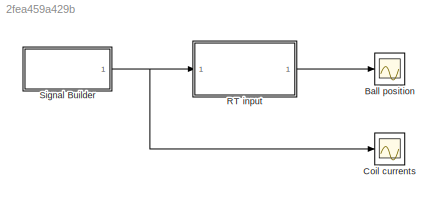
MODEL slx_2fea459a429b
KIND model
CONFIG AbsTol = 1e-6
CONFIG FixedStep = h
CONFIG MaxStep = auto
CONFIG MinStep = auto
CONFIG RelTol = 1e-3
CONFIG SampleTimeConstraint = Unconstrained
CONFIG Solver = ode45
CONFIG SolverMode = SingleTasking
CONFIG SolverName = ode45
CONFIG StartTime = 0.0
CONFIG StopTime = 30
BLOCK [Scope] Ball position
  Ports = [1]
  ScopeSpecificationString = Simulink.scopes.TimeScopeBlockCfg('CurrentConfiguration', extmgr.ConfigurationSet(extmgr.Configuration('Core','General UI',true),extmgr.Configuration('Core','Source UI',true),extmgr.Configuration('Sources','WiredSimulink',true),extmgr.Configuration('Visuals','Time Domain',true,'SerializedDisplays',{struct('MinYLimReal','0','MaxYLimReal','0.15','YLabelReal','','MinYLimMag','0.09989','MaxYLimMag','0...<+1473ch>
BLOCK [Scope] Coil currents
  Ports = [1]
  ScopeSpecificationString = Simulink.scopes.TimeScopeBlockCfg('CurrentConfiguration', extmgr.ConfigurationSet(extmgr.Configuration('Core','General UI',true),extmgr.Configuration('Core','Source UI',true),extmgr.Configuration('Sources','WiredSimulink',true,'DataLoggingVariableName','ScopeData1'),extmgr.Configuration('Visuals','Time Domain',true,'SerializedDisplays',{struct('MinYLimReal','0','MaxYLimReal','0.8','YLabelReal','',...<+1454ch>
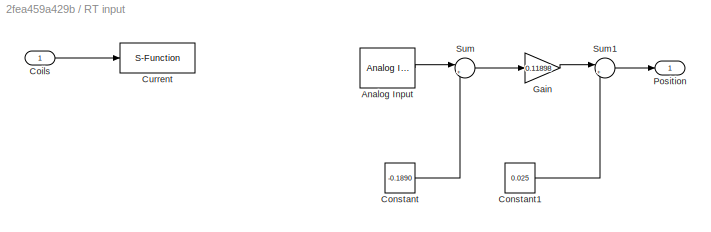
BLOCK [SubSystem] RT input
  Ports = [1, 1]
  RequestExecContextInheritance = off
  Variant = off
BLOCK [Reference] RT input/Analog Input  REF=sldrtlib/Analog Input
  AttributesFormatString = Humusoft\nMF634 [auto]
  Ports = [0, 1]
  SourceBlock = sldrtlib/Analog Input
  SourceType = Simulink Desktop Real-Time Analog Input
BLOCK [Inport] RT input/Coils
  IconDisplay = Port number
BLOCK [Constant] RT input/Constant
  Value = -0.1890
BLOCK [Constant] RT input/Constant1
  Value = 0.025
BLOCK [S-Function] RT input/Current
  EnableBusSupport = off
  FunctionName = sfserialout
  Parameters = h, com
  Ports = [1]
  SFunctionDeploymentMode = off
BLOCK [Gain] RT input/Gain
  Gain = 0.11898
  OutDataTypeStr = Inherit: Inherit via internal rule
  ParamDataTypeStr = Inherit: Inherit via internal rule
  SaturateOnIntegerOverflow = off
BLOCK [Outport] RT input/Position
  IconDisplay = Port number
BLOCK [Sum] RT input/Sum
  IconShape = round
  InputSameDT = off
  Inputs = |++
  OutDataTypeStr = Inherit: Inherit via internal rule
  Ports = [2, 1]
  SaturateOnIntegerOverflow = off
BLOCK [Sum] RT input/Sum1
  IconShape = round
  InputSameDT = off
  Inputs = |++
  OutDataTypeStr = Inherit: Inherit via internal rule
  Ports = [2, 1]
  SaturateOnIntegerOverflow = off
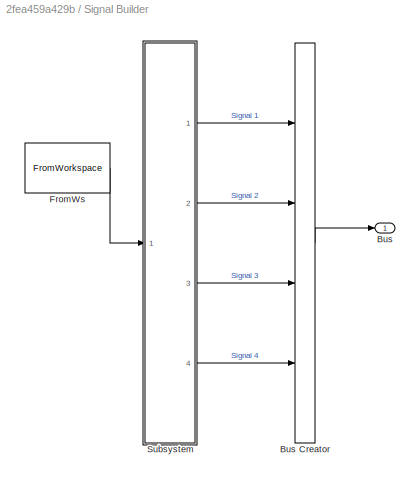
BLOCK [SubSystem] Signal Builder
  ClipboardFcn = sigbuilder_block('clipboard');
  CloseFcn = sigbuilder_block('close');
  ContinueFcn = sigbuilder_block('continue');
  CopyFcn = sigbuilder_block('copy');
  DeleteFcn = sigbuilder_block('delete');
  LoadFcn = sigbuilder_block('load');
  MaskHideContents = on
  ModelCloseFcn = sigbuilder_block('modelClose');
  NameChangeFcn = sigbuilder_block('namechange');
  OpenFcn = sigbuilder_block('open',[437.6 199.2 550.4 400 ]);
  PauseFcn = sigbuilder_block('pause');
  Ports = [0, 1]
  PreSaveFcn = sigbuilder_block('preSave');
  RequestExecContextInheritance = off
  StartFcn = sigbuilder_block('start');
  StopFcn = sigbuilder_block('stop');
  Tag = STV Subsys
  Variant = off
BLOCK [Outport] Signal Builder/Bus
  IconDisplay = Port number
BLOCK [BusCreator] Signal Builder/Bus Creator
  InheritFromInputs = on
  Inputs = 4
  Ports = [4, 1]
  Tag = Bus Creator
BLOCK [FromWorkspace] Signal Builder/FromWs
  SampleTime = 0
  Tag = STV FromWs
  VariableName = tuvar
  ZeroCross = on
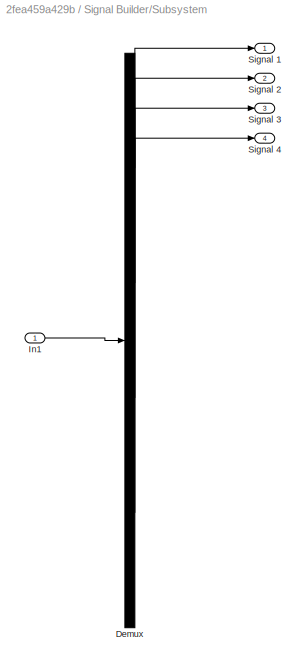
BLOCK [SubSystem] Signal Builder/Subsystem
  Ports = [1, 4]
  RequestExecContextInheritance = off
  Variant = off
BLOCK [Demux] Signal Builder/Subsystem/Demux
  Ports = [1, 4]
  Tag = STV Demux
BLOCK [Inport] Signal Builder/Subsystem/In1
  IconDisplay = Port number
BLOCK [Outport] Signal Builder/Subsystem/Signal 1
  IconDisplay = Port number
  Tag = STV Outport
BLOCK [Outport] Signal Builder/Subsystem/Signal 2
  IconDisplay = Port number
  Port = 2
  Tag = STV Outport
BLOCK [Outport] Signal Builder/Subsystem/Signal 3
  IconDisplay = Port number
  Port = 3
  Tag = STV Outport
BLOCK [Outport] Signal Builder/Subsystem/Signal 4
  IconDisplay = Port number
  Port = 4
  Tag = STV Outport
LINE RT input/Analog Input:1 -> RT input/Sum:1
LINE RT input/Coils:1 -> RT input/Current:1
LINE RT input/Constant1:1 -> RT input/Sum1:2
LINE RT input/Constant:1 -> RT input/Sum:2
LINE RT input/Gain:1 -> RT input/Sum1:1
LINE RT input/Sum1:1 -> RT input/Position:1
LINE RT input/Sum:1 -> RT input/Gain:1
LINE RT input:1 -> Ball position:1
NET Signal Builder:1 -> Coil currents:1, RT input:1
note: NET lines group one-source signal fan-out (src -> all destinations, sorted); 1:1 wires keep LINE
